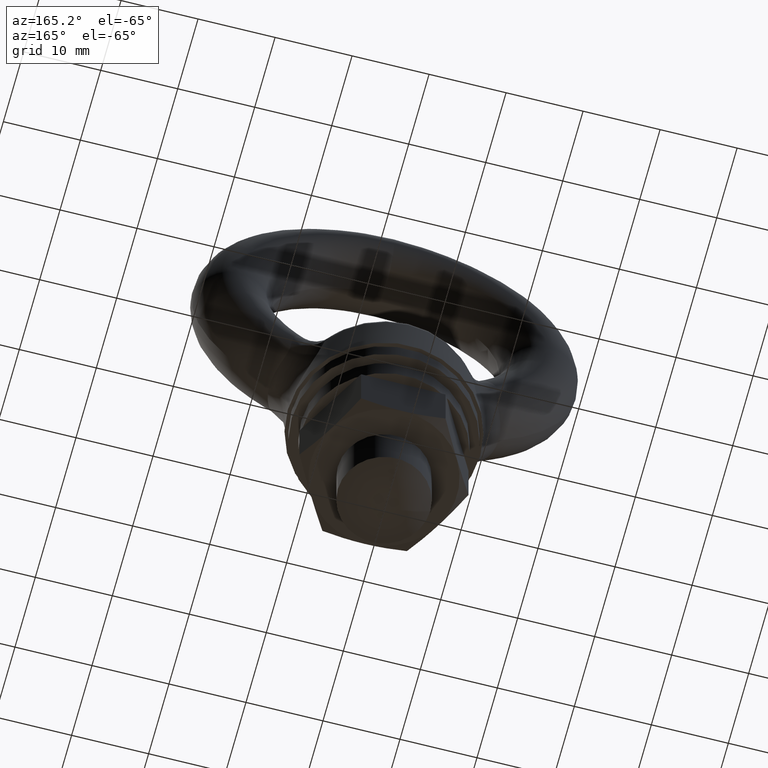
[diagram: clean part render]
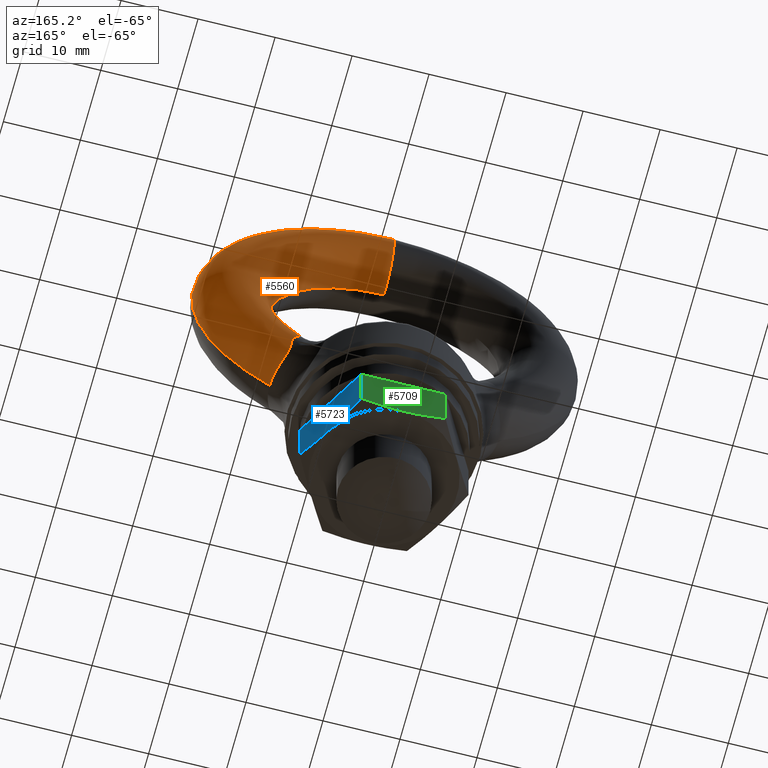
[diagram: same view with three faces highlighted in distinct colors, each labeled with its STEP entity id]
A machine part, auxiliary view with three faces highlighted in distinct colors.
Their STEP definitions:

[orange] entity #5560 — the highlighted toroidal blend (fillet) surface has major radius 20 mm and minor (blend) radius 5 mm.
#1220 = CARTESIAN_POINT ( 'NONE',  ( 1.836909530733565900E-015, 0.0000000000000000000, 15.00000000000000000 ) ) ;
#1346 = CARTESIAN_POINT ( 'NONE',  ( 0.0000000000000000000, 6.123031769111885300E-016, -15.00000000000000000 ) ) ;
#1364 = CARTESIAN_POINT ( 'NONE',  ( 9.388747886670280700, 3.872499616173370000, -13.97642154846874100 ) ) ;
#1365 = CARTESIAN_POINT ( 'NONE',  ( 9.388747886670280700, 3.872499616173370000, -13.97642154846874100 ) ) ;
#1366 = CARTESIAN_POINT ( 'NONE',  ( 9.622791567748530300, 3.937060382688526900, -13.91442621199020600 ) ) ;
#1367 = CARTESIAN_POINT ( 'NONE',  ( 9.857578638938617700, 4.007105676884411800, -13.86006324770248300 ) ) ;
#1368 = CARTESIAN_POINT ( 'NONE',  ( 10.32591816442636900, 4.156510773840198100, -13.77956379790940000 ) ) ;
#1372 = DIRECTION ( 'NONE',  ( 0.0000000000000000000, 0.0000000000000000000, -1.000000000000000000 ) ) ;
#1373 = DIRECTION ( 'NONE',  ( 0.0000000000000000000, -1.000000000000000000, 0.0000000000000000000 ) ) ;
#1374 = AXIS2_PLACEMENT_3D ( 'NONE', #1376, #1373, #1372 ) ;
#1375 = TOROIDAL_SURFACE ( 'NONE', #1374, 20.00000000000000000, 5.000000000000000000 ) ;
#1376 = CARTESIAN_POINT ( 'NONE',  ( 0.0000000000000000000, 0.0000000000000000000, 0.0000000000000000000 ) ) ;
#1402 = FACE_OUTER_BOUND ( 'NONE', #5561, .T. ) ;
#2488 = CARTESIAN_POINT ( 'NONE',  ( 1.958120319570007100E-016, 1.396546343005729200, -15.19899403126414200 ) ) ;
#2540 = DIRECTION ( 'NONE',  ( 0.0000000000000000000, 0.0000000000000000000, 1.000000000000000000 ) ) ;
#2541 = DIRECTION ( 'NONE',  ( -1.000000000000000000, 0.0000000000000000000, 0.0000000000000000000 ) ) ;
#2542 = CARTESIAN_POINT ( 'NONE',  ( 0.0000000000000000000, 0.0000000000000000000, -20.00000000000000000 ) ) ;
#2543 = AXIS2_PLACEMENT_3D ( 'NONE', #2542, #2541, #2540 ) ;
#2544 = CIRCLE ( 'NONE', #2543, 5.000000000000000900 ) ;
#2545 = DIRECTION ( 'NONE',  ( 0.0000000000000000000, -1.000000000000000000, 0.0000000000000000000 ) ) ;
#2546 = CARTESIAN_POINT ( 'NONE',  ( 0.0000000000000000000, 6.123031769111886300E-016, 0.0000000000000000000 ) ) ;
#2547 = AXIS2_PLACEMENT_3D ( 'NONE', #2546, #2545, #2624 ) ;
#2548 = CIRCLE ( 'NONE', #2547, 15.00000000000000000 ) ;
#2549 = DIRECTION ( 'NONE',  ( 0.0000000000000000000, 0.0000000000000000000, -1.000000000000000000 ) ) ;
#2550 = DIRECTION ( 'NONE',  ( 0.0000000000000000000, -1.000000000000000000, 0.0000000000000000000 ) ) ;
#2551 = CARTESIAN_POINT ( 'NONE',  ( 0.0000000000000000000, 0.0000000000000000000, 0.0000000000000000000 ) ) ;
#2552 = AXIS2_PLACEMENT_3D ( 'NONE', #2551, #2550, #2549 ) ;
#2573 = CIRCLE ( 'NONE', #2552, 25.00000000000000000 ) ;
#2574 = CARTESIAN_POINT ( 'NONE',  ( 14.86215204503970700, -2.527848671037101700E-011, -20.10264750201132600 ) ) ;
#2624 = DIRECTION ( 'NONE',  ( 0.0000000000000000000, 0.0000000000000000000, -1.000000000000000000 ) ) ;
#2632 = CARTESIAN_POINT ( 'NONE',  ( 3.061515884555943100E-015, 0.0000000000000000000, 25.00000000000000000 ) ) ;
#2651 = B_SPLINE_CURVE_WITH_KNOTS ( 'NONE', 3,
 ( #2671, #2670, #2727, #2726, #2725, #2724, #2723, #2722, #2721, #2720, #2719, #2718, #2717, #2716, #2715, #2714, #2713, #2712, #2711, #2710 ),
 .UNSPECIFIED., .F., .F.,
 ( 4, 2, 2, 2, 2, 2, 2, 2, 2, 4 ),
 ( 0.006608328917476794300, 0.007434741236981957400, 0.008261153556487120500, 0.009087565875992284500, 0.009913978195497448500, 0.01074039051500261100, 0.01115359667475519100, 0.01156680283450777300, 0.01239321515401293200, 0.01321962747351809000 ),
 .UNSPECIFIED. ) ;
#2670 = CARTESIAN_POINT ( 'NONE',  ( 14.86215204504071300, 0.2771175297232146300, -20.10264750201234900 ) ) ;
#2671 = CARTESIAN_POINT ( 'NONE',  ( 14.86215204503970700, -2.527848671037101700E-011, -20.10264750201132600 ) ) ;
#2672 = CARTESIAN_POINT ( 'NONE',  ( 13.31893206947279900, 4.806487607529510000, -16.72142944604119900 ) ) ;
#2685 = CARTESIAN_POINT ( 'NONE',  ( 10.55986041312675800, 4.236012015019322300, -13.75312123015250500 ) ) ;
#2686 = CARTESIAN_POINT ( 'NONE',  ( 11.02990934933249700, 4.402471360979024700, -13.74700365507099200 ) ) ;
#2687 = CARTESIAN_POINT ( 'NONE',  ( 11.26792950221026900, 4.490269575372592700, -13.76813202839546300 ) ) ;
#2688 = CARTESIAN_POINT ( 'NONE',  ( 11.61236774582784500, 4.616739249964404700, -13.85452889140942100 ) ) ;
#2689 = CARTESIAN_POINT ( 'NONE',  ( 11.72621776301364500, 4.658375832973574000, -13.89283282168687400 ) ) ;
#2690 = CARTESIAN_POINT ( 'NONE',  ( 11.94366068837104500, 4.736151783127861700, -13.98793040789124100 ) ) ;
#2691 = CARTESIAN_POINT ( 'NONE',  ( 12.04800721918669400, 4.772570607816226700, -14.04479500500064600 ) ) ;
#2692 = CARTESIAN_POINT ( 'NONE',  ( 12.34777937304510000, 4.872274553751539700, -14.24490453279810800 ) ) ;
#2693 = CARTESIAN_POINT ( 'NONE',  ( 12.52997194710976800, 4.925402686716116000, -14.42044075256414700 ) ) ;
#2694 = CARTESIAN_POINT ( 'NONE',  ( 12.83095686702875100, 4.990425999208319800, -14.81858703838533700 ) ) ;
#2695 = CARTESIAN_POINT ( 'NONE',  ( 12.95000508961919800, 5.003280128140192900, -15.03678076668746400 ) ) ;
#2696 = CARTESIAN_POINT ( 'NONE',  ( 13.13939469567439000, 4.995336309556058100, -15.50299934104202200 ) ) ;
#2697 = CARTESIAN_POINT ( 'NONE',  ( 13.20716408490535400, 4.974196633764814000, -15.74701167014383100 ) ) ;
#2698 = CARTESIAN_POINT ( 'NONE',  ( 13.29554605287141200, 4.907492148943016600, -16.23195564184692300 ) ) ;
#2699 = CARTESIAN_POINT ( 'NONE',  ( 13.31722921488793600, 4.861827998415894700, -16.47592980092546000 ) ) ;
#2700 = CARTESIAN_POINT ( 'NONE',  ( 13.31893206947279900, 4.806487607529510000, -16.72142944604119900 ) ) ;
#2710 = CARTESIAN_POINT ( 'NONE',  ( 13.31893206947279900, 4.806487607529510000, -16.72142944604119900 ) ) ;
#2711 = CARTESIAN_POINT ( 'NONE',  ( 13.32082786004592700, 4.744877067035885100, -16.99474457056982100 ) ) ;
#2712 = CARTESIAN_POINT ( 'NONE',  ( 13.34560883112412500, 4.663619726254198700, -17.26386049013332500 ) ) ;
#2713 = CARTESIAN_POINT ( 'NONE',  ( 13.43905626443885000, 4.457089106323402400, -17.77070012754449000 ) ) ;
#2714 = CARTESIAN_POINT ( 'NONE',  ( 13.50688699311293900, 4.332709917769995500, -18.00766073657850800 ) ) ;
#2715 = CARTESIAN_POINT ( 'NONE',  ( 13.63164619020573000, 4.110408613605133400, -18.33861337523001800 ) ) ;
#2716 = CARTESIAN_POINT ( 'NONE',  ( 13.67705940049180700, 4.030288183067006500, -18.44471290227143000 ) ) ;
#2717 = CARTESIAN_POINT ( 'NONE',  ( 13.77091204559244800, 3.862512353811348800, -18.64355034231691400 ) ) ;
#2718 = CARTESIAN_POINT ( 'NONE',  ( 13.81964592513563500, 3.774333968674125700, -18.73712614830295600 ) ) ;
#2719 = CARTESIAN_POINT ( 'NONE',  ( 13.96838396735196000, 3.497169613226079200, -19.00225198233968600 ) ) ;
#2720 = CARTESIAN_POINT ( 'NONE',  ( 14.07084074036121300, 3.295635832160941400, -19.15833966581020700 ) ) ;
#2721 = CARTESIAN_POINT ( 'NONE',  ( 14.26992553383303700, 2.858446309720749800, -19.43563766068075800 ) ) ;
#2722 = CARTESIAN_POINT ( 'NONE',  ( 14.36548223846021000, 2.624585836917012300, -19.55520730203090500 ) ) ;
#2723 = CARTESIAN_POINT ( 'NONE',  ( 14.53477884789254800, 2.140902880677050000, -19.75615761159902200 ) ) ;
#2724 = CARTESIAN_POINT ( 'NONE',  ( 14.60951998848303300, 1.889118814893445900, -19.83877700092486400 ) ) ;
#2725 = CARTESIAN_POINT ( 'NONE',  ( 14.73322939602334500, 1.365025715827208600, -19.97165869296224400 ) ) ;
#2726 = CARTESIAN_POINT ( 'NONE',  ( 14.78153873084353600, 1.094155619165238800, -20.02117276583550200 ) ) ;
#2727 = CARTESIAN_POINT ( 'NONE',  ( 14.84569528847374400, 0.5513438864016729800, -20.08636189880488500 ) ) ;
#2728 = B_SPLINE_CURVE_WITH_KNOTS ( 'NONE', 3,
 ( #2700, #2699, #2698, #2697, #2696, #2695, #2694, #2693, #2692, #2691, #2690, #2689, #2688, #2687, #2686, #2685, #1368, #1367, #1366, #1365 ),
 .UNSPECIFIED., .F., .F.,
 ( 4, 2, 2, 2, 2, 2, 2, 2, 2, 4 ),
 ( 0.0000000000000000000, 0.0007456957374151910800, 0.001491391474830382200, 0.002237087212245573100, 0.002982782949660764300, 0.003355630818368359700, 0.003728478687075955100, 0.004474174424491146300, 0.005219870161906336100, 0.005965565899321526000 ),
 .UNSPECIFIED. ) ;
#2771 = CARTESIAN_POINT ( 'NONE',  ( 1.958120319570007100E-016, 1.396546343005729200, -15.19899403126414200 ) ) ;
#2772 = CARTESIAN_POINT ( 'NONE',  ( 0.4101582431903846300, 1.396546343005722300, -15.19899403126414200 ) ) ;
#2773 = CARTESIAN_POINT ( 'NONE',  ( 0.8180458332774356300, 1.460341884983512800, -15.20044254573769000 ) ) ;
#2774 = CARTESIAN_POINT ( 'NONE',  ( 1.620871111484570600, 1.631085611882108900, -15.19169858956210800 ) ) ;
#2775 = CARTESIAN_POINT ( 'NONE',  ( 2.017063734841450600, 1.735666476697516300, -15.18111097933226900 ) ) ;
#2776 = CARTESIAN_POINT ( 'NONE',  ( 3.201678649420685900, 2.059738768985505300, -15.12283459875339100 ) ) ;
#2777 = CARTESIAN_POINT ( 'NONE',  ( 3.985508951627815900, 2.292071500154085700, -15.04877292865518800 ) ) ;
#2778 = CARTESIAN_POINT ( 'NONE',  ( 5.544559836124823200, 2.753571300754935200, -14.83466686890708900 ) ) ;
#2779 = CARTESIAN_POINT ( 'NONE',  ( 6.318676591714446300, 2.984954132347775100, -14.69520717697338300 ) ) ;
#2780 = CARTESIAN_POINT ( 'NONE',  ( 7.857638867690355700, 3.438551438763592000, -14.36751614759351800 ) ) ;
#2781 = CARTESIAN_POINT ( 'NONE',  ( 8.623070946138408700, 3.661288230521183400, -14.17924009645726200 ) ) ;
#2782 = CARTESIAN_POINT ( 'NONE',  ( 9.388747886670280700, 3.872499616173370000, -13.97642154846874100 ) ) ;
#2785 = B_SPLINE_CURVE_WITH_KNOTS ( 'NONE', 3,
 ( #2782, #2781, #2780, #2779, #2778, #2777, #2776, #2775, #2774, #2773, #2772, #2771 ),
 .UNSPECIFIED., .F., .F.,
 ( 4, 2, 2, 2, 2, 4 ),
 ( 0.0000000000000000000, 0.002456297241042612600, 0.004912594482085227800, 0.007368891723127842100, 0.008597040343649151000, 0.009825188964170457300 ),
 .UNSPECIFIED. ) ;
#2787 = DIRECTION ( 'NONE',  ( -1.224606353822377300E-016, 0.0000000000000000000, -1.000000000000000000 ) ) ;
#2788 = DIRECTION ( 'NONE',  ( 1.000000000000000000, 0.0000000000000000000, -1.224606353822377300E-016 ) ) ;
#2789 = CARTESIAN_POINT ( 'NONE',  ( 2.449212707644754500E-015, 0.0000000000000000000, 20.00000000000000000 ) ) ;
#2790 = AXIS2_PLACEMENT_3D ( 'NONE', #2789, #2788, #2787 ) ;
#2791 = CIRCLE ( 'NONE', #2790, 5.000000000000000900 ) ;
#5448 = VERTEX_POINT ( 'NONE', #1220 ) ;
#5501 = ORIENTED_EDGE ( 'NONE', *, *, #5592, .T. ) ;
#5504 = VERTEX_POINT ( 'NONE', #2488 ) ;
#5505 = EDGE_CURVE ( 'NONE', #5568, #5504, #2544, .T. ) ;
#5506 = ORIENTED_EDGE ( 'NONE', *, *, #5527, .T. ) ;
#5522 = VERTEX_POINT ( 'NONE', #2574 ) ;
#5524 = EDGE_CURVE ( 'NONE', #5522, #5539, #2573, .T. ) ;
#5527 = EDGE_CURVE ( 'NONE', #5568, #5448, #2548, .T. ) ;
#5539 = VERTEX_POINT ( 'NONE', #2632 ) ;
#5551 = EDGE_CURVE ( 'NONE', #5522, #5552, #2651, .T. ) ;
#5552 = VERTEX_POINT ( 'NONE', #2672 ) ;
#5553 = ORIENTED_EDGE ( 'NONE', *, *, #5554, .T. ) ;
#5554 = EDGE_CURVE ( 'NONE', #5552, #5555, #2728, .T. ) ;
#5555 = VERTEX_POINT ( 'NONE', #1364 ) ;
#5560 = ADVANCED_FACE ( 'NONE', ( #1402 ), #1375, .T. ) ;
#5561 = EDGE_LOOP ( 'NONE', ( #5562, #5563, #5553, #5501, #5591, #5506, #5590 ) ) ;
#5562 = ORIENTED_EDGE ( 'NONE', *, *, #5524, .F. ) ;
#5563 = ORIENTED_EDGE ( 'NONE', *, *, #5551, .T. ) ;
#5568 = VERTEX_POINT ( 'NONE', #1346 ) ;
#5589 = EDGE_CURVE ( 'NONE', #5448, #5539, #2791, .T. ) ;
#5590 = ORIENTED_EDGE ( 'NONE', *, *, #5589, .T. ) ;
#5591 = ORIENTED_EDGE ( 'NONE', *, *, #5505, .F. ) ;
#5592 = EDGE_CURVE ( 'NONE', #5555, #5504, #2785, .T. ) ;

[blue] entity #5723 — the highlighted planar face has unit normal (0.866, 0.5, 0).
#2892 = DIRECTION ( 'NONE',  ( 0.0000000000000000000, 0.0000000000000000000, -1.000000000000000000 ) ) ;
#2893 = VECTOR ( 'NONE', #2892, 1000.000000000000000 ) ;
#2894 = CARTESIAN_POINT ( 'NONE',  ( 10.96965400000000000, 0.0000000000000000000, 960.7000009999999300 ) ) ;
#2895 = LINE ( 'NONE', #2894, #2893 ) ;
#2912 = DIRECTION ( 'NONE',  ( 0.4999998935266248800, -0.8660254652568617500, 0.0000000000000000000 ) ) ;
#2913 = VECTOR ( 'NONE', #2912, 1000.000000000000000 ) ;
#2914 = CARTESIAN_POINT ( 'NONE',  ( 8.227241667975970800, 4.749998843031370700, -31.29999900000000300 ) ) ;
#2915 = LINE ( 'NONE', #2914, #2913 ) ;
#3008 = CARTESIAN_POINT ( 'NONE',  ( 5.484827999999999400, 9.500000000000000000, -38.45149309617215000 ) ) ;
#3009 = CARTESIAN_POINT ( 'NONE',  ( 5.484827999999999400, 9.500000000000000000, -31.29999900000004900 ) ) ;
#3010 = DIRECTION ( 'NONE',  ( 0.0000000000000000000, 0.0000000000000000000, -1.000000000000000000 ) ) ;
#3011 = VECTOR ( 'NONE', #3010, 1000.000000000000000 ) ;
#3012 = CARTESIAN_POINT ( 'NONE',  ( 5.484827999999999400, 9.500000000000000000, 960.7000009999999300 ) ) ;
#3013 = LINE ( 'NONE', #3012, #3011 ) ;
#3016 = CARTESIAN_POINT ( 'NONE',  ( 5.484827999999999400, 9.500000000000000000, -38.45149309617215000 ) ) ;
#3017 = CARTESIAN_POINT ( 'NONE',  ( 5.932330552512342900, 8.724902622459259400, -38.70985890972451000 ) ) ;
#3018 = CARTESIAN_POINT ( 'NONE',  ( 6.383566675635897500, 7.943338509090161800, -38.92314492362716300 ) ) ;
#3019 = CARTESIAN_POINT ( 'NONE',  ( 7.068556014150708200, 6.756901835275772200, -39.14484864142914900 ) ) ;
#3020 = CARTESIAN_POINT ( 'NONE',  ( 7.298245620966593300, 6.359067653343498900, -39.20233108241488700 ) ) ;
#3021 = CARTESIAN_POINT ( 'NONE',  ( 7.760718403856200700, 5.558041068826269400, -39.27994365559979400 ) ) ;
#3022 = CARTESIAN_POINT ( 'NONE',  ( 7.994502051249371600, 5.153115798592518000, -39.29999916865882900 ) ) ;
#3023 = CARTESIAN_POINT ( 'NONE',  ( 8.227241919940189200, 4.749998988502939700, -39.29999900000009900 ) ) ;
#3025 = B_SPLINE_CURVE_WITH_KNOTS ( 'NONE', 3,
 ( #3023, #3022, #3021, #3020, #3019, #3018, #3017, #3016 ),
 .UNSPECIFIED., .F., .F.,
 ( 4, 2, 2, 4 ),
 ( 0.005549983580204850800, 0.006932233158109642000, 0.008314482736014433200, 0.01107898189182401400 ),
 .UNSPECIFIED. ) ;
#3027 = CARTESIAN_POINT ( 'NONE',  ( 8.227241919940189200, 4.749998988502939700, -39.29999900000009900 ) ) ;
#3028 = CARTESIAN_POINT ( 'NONE',  ( 8.694467617334991500, 3.940739530354770100, -39.29999916660592200 ) ) ;
#3029 = CARTESIAN_POINT ( 'NONE',  ( 9.155885329051516300, 3.141540383233786000, -39.21913203408915600 ) ) ;
#3030 = CARTESIAN_POINT ( 'NONE',  ( 10.06913193212121600, 1.559750417761383500, -38.92389393324790300 ) ) ;
#3031 = CARTESIAN_POINT ( 'NONE',  ( 10.52103144511055700, 0.7770372791132730300, -38.71050622031482600 ) ) ;
#3032 = CARTESIAN_POINT ( 'NONE',  ( 10.96965400000000000, -2.589264619169549700E-016, -38.45149386748449400 ) ) ;
#3033 = B_SPLINE_CURVE_WITH_KNOTS ( 'NONE', 3,
 ( #3032, #3031, #3030, #3029, #3028, #3027 ),
 .UNSPECIFIED., .F., .F.,
 ( 4, 2, 4 ),
 ( 2.380730476888808600E-007, 0.002775110826626269900, 0.005549983580204850800 ),
 .UNSPECIFIED. ) ;
#3034 = CARTESIAN_POINT ( 'NONE',  ( 8.227241919940189200, 4.749998988502939700, -39.29999900000009900 ) ) ;
#3035 = DIRECTION ( 'NONE',  ( -0.4999998935266248800, 0.8660254652568617500, 0.0000000000000000000 ) ) ;
#3036 = DIRECTION ( 'NONE',  ( 0.8660254652568617500, 0.4999998935266248800, 0.0000000000000000000 ) ) ;
#3037 = CARTESIAN_POINT ( 'NONE',  ( 5.484827999999999400, 9.500000000000000000, 960.7000009999999300 ) ) ;
#3038 = AXIS2_PLACEMENT_3D ( 'NONE', #3037, #3036, #3035 ) ;
#3039 = PLANE ( 'NONE',  #3038 ) ;
#3040 = FACE_OUTER_BOUND ( 'NONE', #5724, .T. ) ;
#4966 = CARTESIAN_POINT ( 'NONE',  ( 10.96965400000000000, -2.589264619169549700E-016, -38.45149386748449400 ) ) ;
#4982 = CARTESIAN_POINT ( 'NONE',  ( 10.96965400000000000, 0.0000000000000000000, -31.29999900000004900 ) ) ;
#5595 = ORIENTED_EDGE ( 'NONE', *, *, #5712, .F. ) ;
#5633 = EDGE_CURVE ( 'NONE', #5802, #5809, #2895, .T. ) ;
#5660 = EDGE_CURVE ( 'NONE', #5713, #5802, #2915, .T. ) ;
#5661 = ORIENTED_EDGE ( 'NONE', *, *, #5660, .T. ) ;
#5712 = EDGE_CURVE ( 'NONE', #5713, #5714, #3013, .T. ) ;
#5713 = VERTEX_POINT ( 'NONE', #3009 ) ;
#5714 = VERTEX_POINT ( 'NONE', #3008 ) ;
#5723 = ADVANCED_FACE ( 'NONE', ( #3040 ), #3039, .T. ) ;
#5724 = EDGE_LOOP ( 'NONE', ( #5725, #5727, #5729, #5595, #5661 ) ) ;
#5725 = ORIENTED_EDGE ( 'NONE', *, *, #5633, .T. ) ;
#5726 = VERTEX_POINT ( 'NONE', #3034 ) ;
#5727 = ORIENTED_EDGE ( 'NONE', *, *, #5728, .T. ) ;
#5728 = EDGE_CURVE ( 'NONE', #5809, #5726, #3033, .T. ) ;
#5729 = ORIENTED_EDGE ( 'NONE', *, *, #5730, .T. ) ;
#5730 = EDGE_CURVE ( 'NONE', #5726, #5714, #3025, .T. ) ;
#5802 = VERTEX_POINT ( 'NONE', #4982 ) ;
#5809 = VERTEX_POINT ( 'NONE', #4966 ) ;

[green] entity #5709 — the highlighted planar face has unit normal (0, 1, 0).
#2701 = DIRECTION ( 'NONE',  ( 0.0000000000000000000, 0.0000000000000000000, 1.000000000000000000 ) ) ;
#2702 = DIRECTION ( 'NONE',  ( 0.0000000000000000000, 1.000000000000000000, 0.0000000000000000000 ) ) ;
#2703 = CARTESIAN_POINT ( 'NONE',  ( -5.484827999999999400, 9.500000000000000000, 960.7000009999999300 ) ) ;
#2708 = AXIS2_PLACEMENT_3D ( 'NONE', #2703, #2702, #2701 ) ;
#2709 = PLANE ( 'NONE',  #2708 ) ;
#2964 = FACE_OUTER_BOUND ( 'NONE', #5710, .T. ) ;
#2989 = CARTESIAN_POINT ( 'NONE',  ( -5.484827999999999400, 9.500000000000000000, -38.45149309617215000 ) ) ;
#2990 = CARTESIAN_POINT ( 'NONE',  ( -4.591836933403688400, 9.500000000000000000, -38.70927742811878900 ) ) ;
#2991 = CARTESIAN_POINT ( 'NONE',  ( -3.678636697991838100, 9.500000000000000000, -38.92506264670652900 ) ) ;
#2992 = CARTESIAN_POINT ( 'NONE',  ( -1.848673466476764300, 9.500000000000003600, -39.22018446358226400 ) ) ;
#2993 = CARTESIAN_POINT ( 'NONE',  ( -0.9278046808306844600, 9.500000000000001800, -39.29999900000009900 ) ) ;
#2994 = CARTESIAN_POINT ( 'NONE',  ( 0.0000000000000000000, 9.500000000000000000, -39.29999900000009900 ) ) ;
#2995 = CARTESIAN_POINT ( 'NONE',  ( 0.0000000000000000000, 9.500000000000000000, -31.29999900000000300 ) ) ;
#2996 = LINE ( 'NONE', #2995, #3042 ) ;
#2997 = B_SPLINE_CURVE_WITH_KNOTS ( 'NONE', 3,
 ( #2994, #2993, #2992, #2991, #2990, #2989 ),
 .UNSPECIFIED., .F., .F.,
 ( 4, 2, 4 ),
 ( 0.03094261341731328900, 0.03371950614290897300, 0.03649639886850466300 ),
 .UNSPECIFIED. ) ;
#2998 = CARTESIAN_POINT ( 'NONE',  ( 0.0000000000000000000, 9.500000000000000000, -39.29999900000009900 ) ) ;
#2999 = CARTESIAN_POINT ( 'NONE',  ( 0.4642422273689783600, 9.500000000000000000, -39.29999900000009200 ) ) ;
#3000 = CARTESIAN_POINT ( 'NONE',  ( 0.9309557367886552900, 9.500000000000000000, -39.28018090963887900 ) ) ;
#3001 = CARTESIAN_POINT ( 'NONE',  ( 1.864605097463271700, 9.500000000000000000, -39.20171378440561900 ) ) ;
#3002 = CARTESIAN_POINT ( 'NONE',  ( 2.326485915615581900, 9.499999999999998200, -39.14361881194127300 ) ) ;
#3003 = CARTESIAN_POINT ( 'NONE',  ( 3.699380491704221000, 9.500000000000000000, -38.92069925434263700 ) ) ;
#3004 = CARTESIAN_POINT ( 'NONE',  ( 4.597734182446064500, 9.500000000000001800, -38.70757503885466400 ) ) ;
#3005 = CARTESIAN_POINT ( 'NONE',  ( 5.484827999999999400, 9.500000000000000000, -38.45149309617215000 ) ) ;
#3006 = CARTESIAN_POINT ( 'NONE',  ( 0.0000000000000000000, 9.500000000000000000, -39.29999900000009900 ) ) ;
#3007 = B_SPLINE_CURVE_WITH_KNOTS ( 'NONE', 3,
 ( #3005, #3004, #3003, #3002, #3001, #3000, #2999, #2998 ),
 .UNSPECIFIED., .F., .F.,
 ( 4, 2, 2, 4 ),
 ( 0.02538475887861422000, 0.02816368614796375300, 0.02955314978263852100, 0.03094261341731328900 ),
 .UNSPECIFIED. ) ;
#3008 = CARTESIAN_POINT ( 'NONE',  ( 5.484827999999999400, 9.500000000000000000, -38.45149309617215000 ) ) ;
#3009 = CARTESIAN_POINT ( 'NONE',  ( 5.484827999999999400, 9.500000000000000000, -31.29999900000004900 ) ) ;
#3010 = DIRECTION ( 'NONE',  ( 0.0000000000000000000, 0.0000000000000000000, -1.000000000000000000 ) ) ;
#3011 = VECTOR ( 'NONE', #3010, 1000.000000000000000 ) ;
#3012 = CARTESIAN_POINT ( 'NONE',  ( 5.484827999999999400, 9.500000000000000000, 960.7000009999999300 ) ) ;
#3013 = LINE ( 'NONE', #3012, #3011 ) ;
#3041 = DIRECTION ( 'NONE',  ( 1.000000000000000000, 0.0000000000000000000, 0.0000000000000000000 ) ) ;
#3042 = VECTOR ( 'NONE', #3041, 1000.000000000000000 ) ;
#5028 = CARTESIAN_POINT ( 'NONE',  ( -5.484827999999999400, 9.500000000000000000, 960.7000009999999300 ) ) ;
#5029 = LINE ( 'NONE', #5028, #5084 ) ;
#5081 = CARTESIAN_POINT ( 'NONE',  ( -5.484827999999999400, 9.500000000000000000, -38.45149309617215000 ) ) ;
#5082 = CARTESIAN_POINT ( 'NONE',  ( -5.484827999999999400, 9.500000000000000000, -31.29999900000004900 ) ) ;
#5083 = DIRECTION ( 'NONE',  ( 0.0000000000000000000, 0.0000000000000000000, -1.000000000000000000 ) ) ;
#5084 = VECTOR ( 'NONE', #5083, 1000.000000000000000 ) ;
#5709 = ADVANCED_FACE ( 'NONE', ( #2964 ), #2709, .T. ) ;
#5710 = EDGE_LOOP ( 'NONE', ( #5711, #5715, #5718, #5720, #5721 ) ) ;
#5711 = ORIENTED_EDGE ( 'NONE', *, *, #5712, .T. ) ;
#5712 = EDGE_CURVE ( 'NONE', #5713, #5714, #3013, .T. ) ;
#5713 = VERTEX_POINT ( 'NONE', #3009 ) ;
#5714 = VERTEX_POINT ( 'NONE', #3008 ) ;
#5715 = ORIENTED_EDGE ( 'NONE', *, *, #5716, .T. ) ;
#5716 = EDGE_CURVE ( 'NONE', #5714, #5717, #3007, .T. ) ;
#5717 = VERTEX_POINT ( 'NONE', #3006 ) ;
#5718 = ORIENTED_EDGE ( 'NONE', *, *, #5719, .T. ) ;
#5719 = EDGE_CURVE ( 'NONE', #5717, #5838, #2997, .T. ) ;
#5720 = ORIENTED_EDGE ( 'NONE', *, *, #5836, .F. ) ;
#5721 = ORIENTED_EDGE ( 'NONE', *, *, #5722, .T. ) ;
#5722 = EDGE_CURVE ( 'NONE', #5837, #5713, #2996, .T. ) ;
#5836 = EDGE_CURVE ( 'NONE', #5837, #5838, #5029, .T. ) ;
#5837 = VERTEX_POINT ( 'NONE', #5082 ) ;
#5838 = VERTEX_POINT ( 'NONE', #5081 ) ;